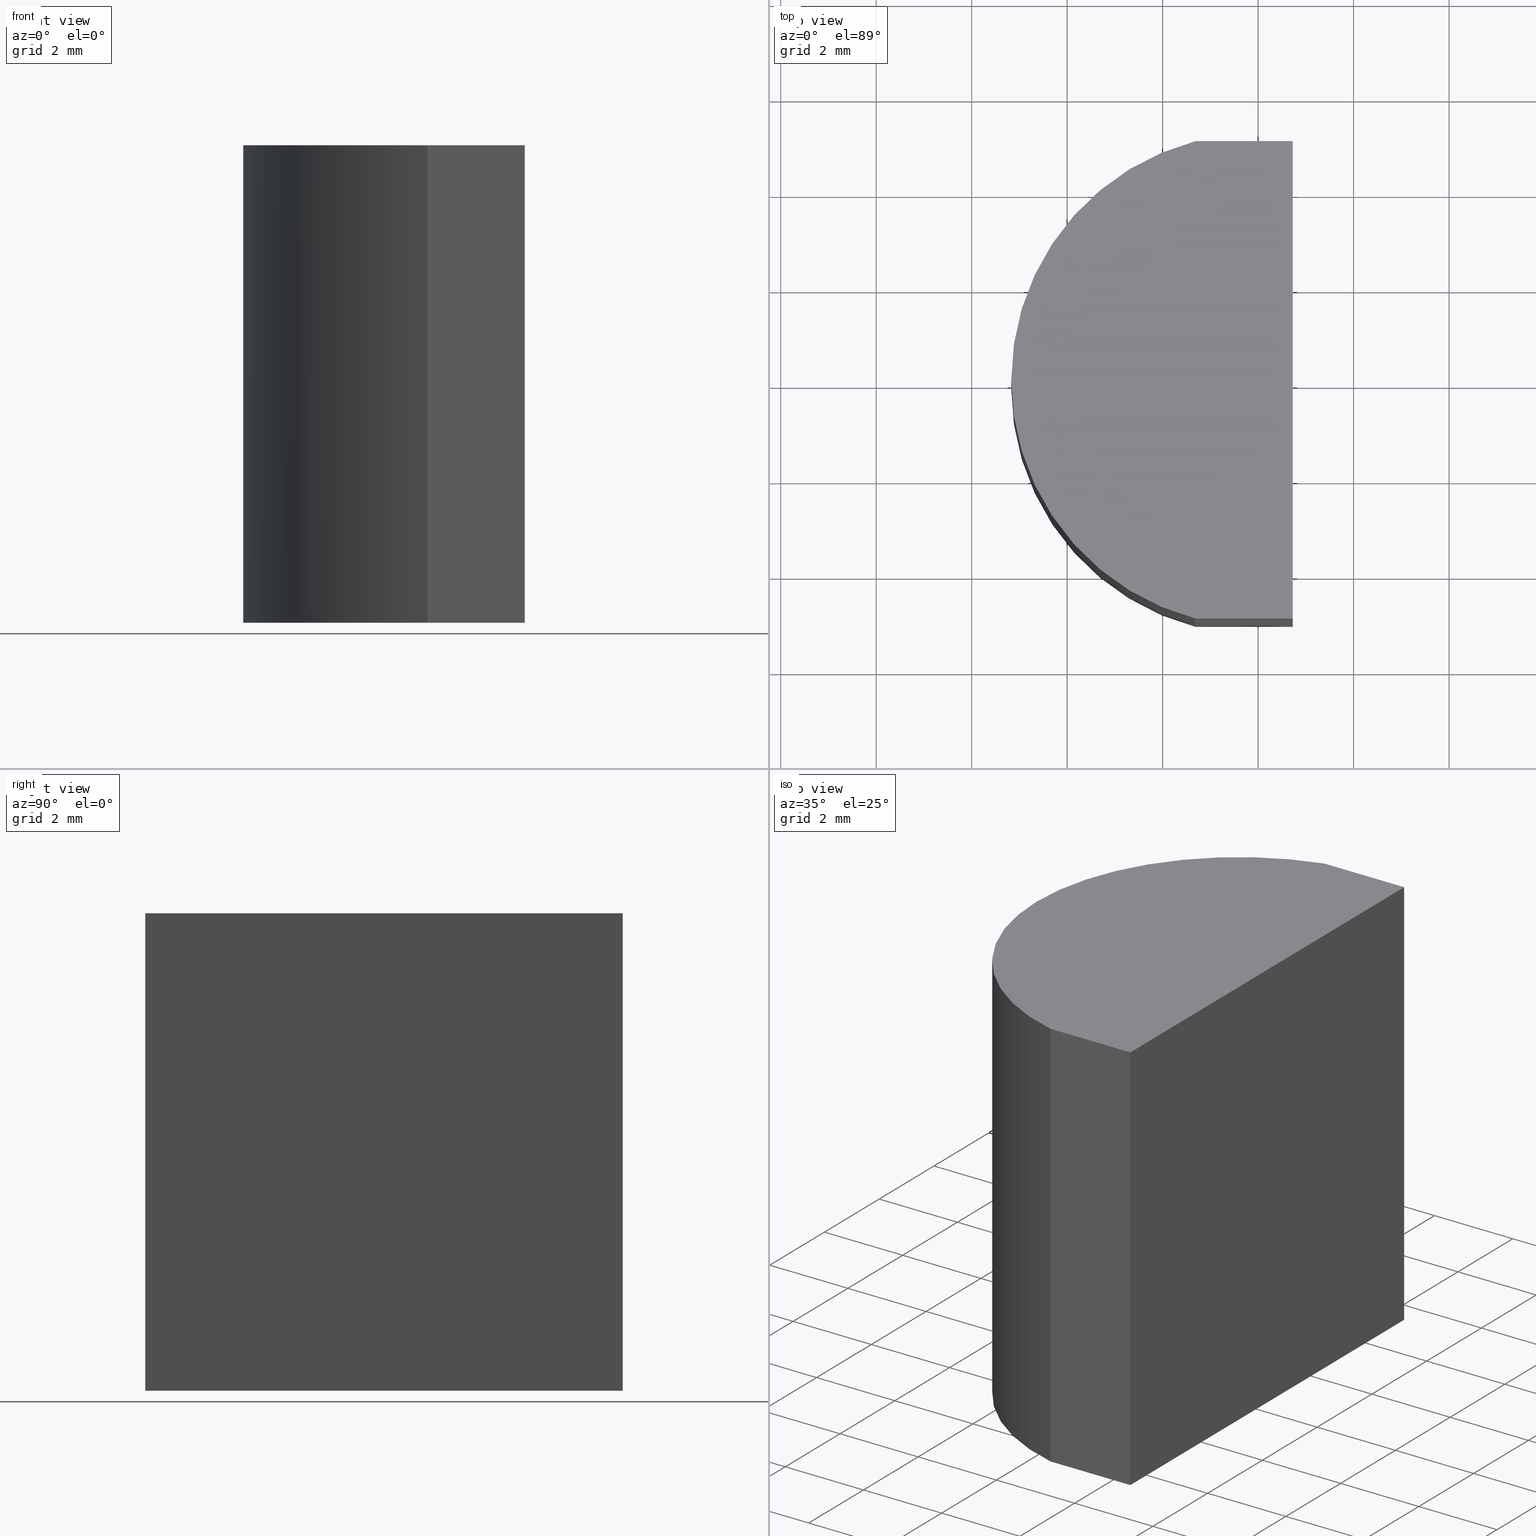
[diagram: canonical four-view strip — front | top / right | iso, engineering-drawing reading convention]
A machine part, canonical four-view strip (front | top / right | iso — engineering-drawing reading convention). The complete STEP part file that produces these views, byte-faithful:
ISO-10303-21;
HEADER;
FILE_DESCRIPTION (( 'STEP AP203' ),
    '1' );
FILE_NAME ('1555517.STEP',
    '2024-05-13T02:27:43',
    ( '' ),
    ( '' ),
    'SwSTEP 2.0',
    'SolidWorks 2020',
    '' );
FILE_SCHEMA (( 'CONFIG_CONTROL_DESIGN' ));
ENDSEC;

DATA;
#1 = SHAPE_DEFINITION_REPRESENTATION ( #11, #206 ) ;
#2 = AXIS2_PLACEMENT_3D ( 'NONE', #225, #198, #118 ) ;
#3 = CARTESIAN_POINT ( 'NONE',  ( 0.7251235799513326974, 5.000000000000000000, 0.000000000000000000 ) ) ;
#4 = VERTEX_POINT ( 'NONE', #29 ) ;
#5 = FACE_OUTER_BOUND ( 'NONE', #64, .T. ) ;
#6 = CYLINDRICAL_SURFACE ( 'NONE', #142, 5.169999999999999929 ) ;
#7 = APPROVAL_PERSON_ORGANIZATION ( #45, #121, #125 ) ;
#8 = DATE_AND_TIME ( #80, #58 ) ;
#9 = VERTEX_POINT ( 'NONE', #90 ) ;
#10 = CARTESIAN_POINT ( 'NONE',  ( -1.314876420048667560, -5.000000000000000000, 0.000000000000000000 ) ) ;
#11 = PRODUCT_DEFINITION_SHAPE ( 'NONE', 'NONE',  #252 ) ;
#12 = FACE_OUTER_BOUND ( 'NONE', #167, .T. ) ;
#13 = ADVANCED_FACE ( 'NONE', ( #12 ), #87, .T. ) ;
#14 = FACE_OUTER_BOUND ( 'NONE', #217, .T. ) ;
#15 = CARTESIAN_POINT ( 'NONE',  ( -1.314876420048667560, 5.000000000000000000, 0.000000000000000000 ) ) ;
#16 = DIRECTION ( 'NONE',  ( -0.000000000000000000, 1.000000000000000000, -0.000000000000000000 ) ) ;
#17 =( LENGTH_UNIT ( ) NAMED_UNIT ( * ) SI_UNIT ( .MILLI., .METRE. ) );
#18 = EDGE_CURVE ( 'NONE', #70, #4, #221, .T. ) ;
#19 = APPROVAL ( #86, 'δָ��' ) ;
#20 = COORDINATED_UNIVERSAL_TIME_OFFSET ( 8, 0, .AHEAD. ) ;
#21 = VERTEX_POINT ( 'NONE', #245 ) ;
#22 = ORIENTED_EDGE ( 'NONE', *, *, #200, .T. ) ;
#23 = PERSON_AND_ORGANIZATION_ROLE ( 'classification_officer' ) ;
#24 = CARTESIAN_POINT ( 'NONE',  ( 0.7251235799513326974, 5.000000000000000000, 10.00000000000000000 ) ) ;
#25 = ADVANCED_FACE ( 'NONE', ( #243 ), #6, .T. ) ;
#26 = PERSON_AND_ORGANIZATION_ROLE ( 'creator' ) ;
#27 = ORIENTED_EDGE ( 'NONE', *, *, #39, .F. ) ;
#28 = EDGE_LOOP ( 'NONE', ( #213, #106, #46, #219, #193 ) ) ;
#29 = CARTESIAN_POINT ( 'NONE',  ( 0.7251235799513326974, 5.000000000000000000, 0.000000000000000000 ) ) ;
#30 = CC_DESIGN_APPROVAL ( #121, ( #110 ) ) ;
#31 = EDGE_LOOP ( 'NONE', ( #85, #148, #47, #102 ) ) ;
#32 = CC_DESIGN_PERSON_AND_ORGANIZATION_ASSIGNMENT ( #122, #26, ( #207 ) ) ;
#33 = DIRECTION ( 'NONE',  ( -0.000000000000000000, 1.000000000000000000, -0.000000000000000000 ) ) ;
#34 = AXIS2_PLACEMENT_3D ( 'NONE', #172, #152, #130 ) ;
#35 = DIRECTION ( 'NONE',  ( 1.000000000000000000, 0.000000000000000000, 0.000000000000000000 ) ) ;
#36 = APPLICATION_PROTOCOL_DEFINITION ( 'international standard', 'config_control_design', 1994, #89 ) ;
#37 = DIRECTION ( 'NONE',  ( 1.000000000000000000, 0.000000000000000000, 0.000000000000000000 ) ) ;
#38 = DIRECTION ( 'NONE',  ( 1.000000000000000000, 0.000000000000000000, -0.000000000000000000 ) ) ;
#39 = EDGE_CURVE ( 'NONE', #83, #259, #175, .T. ) ;
#40 = DATE_AND_TIME ( #234, #165 ) ;
#41 = UNCERTAINTY_MEASURE_WITH_UNIT (LENGTH_MEASURE( 1.000000000000000082E-05 ), #17, 'distance_accuracy_value', 'NONE');
#42 = DATE_AND_TIME ( #69, #232 ) ;
#43 = DIRECTION ( 'NONE',  ( -1.000000000000000000, -0.000000000000000000, -0.000000000000000000 ) ) ;
#44 = EDGE_CURVE ( 'NONE', #70, #83, #263, .T. ) ;
#45 = PERSON_AND_ORGANIZATION ( #178, #104 ) ;
#46 = ORIENTED_EDGE ( 'NONE', *, *, #78, .F. ) ;
#47 = ORIENTED_EDGE ( 'NONE', *, *, #39, .T. ) ;
#48 = PERSON_AND_ORGANIZATION ( #178, #104 ) ;
#49 = CARTESIAN_POINT ( 'NONE',  ( -1.314876420048667560, 5.000000000000000000, 10.00000000000000000 ) ) ;
#50 = PRODUCT ( '1555517', '1555517', '', ( #116 ) ) ;
#51 = ORIENTED_EDGE ( 'NONE', *, *, #247, .T. ) ;
#52 = DIRECTION ( 'NONE',  ( 0.000000000000000000, 0.000000000000000000, 1.000000000000000000 ) ) ;
#53 = DIRECTION ( 'NONE',  ( 1.000000000000000000, 0.000000000000000000, 0.000000000000000000 ) ) ;
#54 = CARTESIAN_POINT ( 'NONE',  ( -5.169999999999999929, 0.000000000000000000, 10.00000000000000000 ) ) ;
#55 = CARTESIAN_POINT ( 'NONE',  ( -1.314876420048667560, 5.000000000000000000, 10.00000000000000000 ) ) ;
#56 = CC_DESIGN_DATE_AND_TIME_ASSIGNMENT ( #40, #185, ( #110 ) ) ;
#57 = VECTOR ( 'NONE', #33, 1000.000000000000000 ) ;
#58 = LOCAL_TIME ( 10, 27, 43.00000000000000000, #216 ) ;
#59 = PERSON_AND_ORGANIZATION ( #178, #104 ) ;
#60 = VERTEX_POINT ( 'NONE', #195 ) ;
#61 = FACE_OUTER_BOUND ( 'NONE', #208, .T. ) ;
#62 = APPROVAL_DATE_TIME ( #242, #194 ) ;
#63 = VECTOR ( 'NONE', #241, 1000.000000000000000 ) ;
#64 = EDGE_LOOP ( 'NONE', ( #255, #164, #258, #196 ) ) ;
#65 = VERTEX_POINT ( 'NONE', #10 ) ;
#66 = CALENDAR_DATE ( 2024, 13, 5 ) ;
#67 = DIRECTION ( 'NONE',  ( -0.000000000000000000, -0.000000000000000000, -1.000000000000000000 ) ) ;
#68 = CC_DESIGN_DATE_AND_TIME_ASSIGNMENT ( #84, #166, ( #252 ) ) ;
#69 = CALENDAR_DATE ( 2024, 13, 5 ) ;
#70 = VERTEX_POINT ( 'NONE', #24 ) ;
#71 = PLANE ( 'NONE',  #272 ) ;
#72 = DIRECTION ( 'NONE',  ( 0.000000000000000000, 1.000000000000000000, 0.000000000000000000 ) ) ;
#73 = AXIS2_PLACEMENT_3D ( 'NONE', #95, #182, #180 ) ;
#74 = ADVANCED_FACE ( 'NONE', ( #5 ), #71, .F. ) ;
#75 = CARTESIAN_POINT ( 'NONE',  ( 0.7251235799513326974, 5.000000000000000000, 10.00000000000000000 ) ) ;
#76 = LINE ( 'NONE', #249, #119 ) ;
#77 = LINE ( 'NONE', #269, #231 ) ;
#78 = EDGE_CURVE ( 'NONE', #9, #4, #223, .T. ) ;
#79 =( NAMED_UNIT ( * ) PLANE_ANGLE_UNIT ( ) SI_UNIT ( $, .RADIAN. ) );
#80 = CALENDAR_DATE ( 2024, 13, 5 ) ;
#81 = ORIENTED_EDGE ( 'NONE', *, *, #18, .T. ) ;
#82 = AXIS2_PLACEMENT_3D ( 'NONE', #160, #97, #38 ) ;
#83 = VERTEX_POINT ( 'NONE', #113 ) ;
#84 = DATE_AND_TIME ( #151, #159 ) ;
#85 = ORIENTED_EDGE ( 'NONE', *, *, #162, .F. ) ;
#86 = APPROVAL_STATUS ( 'not_yet_approved' ) ;
#87 = CYLINDRICAL_SURFACE ( 'NONE', #128, 5.169999999999999929 ) ;
#88 = CC_DESIGN_APPROVAL ( #19, ( #207 ) ) ;
#89 = APPLICATION_CONTEXT ( 'configuration controlled 3d designs of mechanical parts and assemblies' ) ;
#90 = CARTESIAN_POINT ( 'NONE',  ( 0.7251235799513326974, -5.000000000000000000, 0.000000000000000000 ) ) ;
#91 = EDGE_LOOP ( 'NONE', ( #239, #235, #262, #131 ) ) ;
#92 = CIRCLE ( 'NONE', #34, 5.169999999999999929 ) ;
#93 =( NAMED_UNIT ( * ) SI_UNIT ( $, .STERADIAN. ) SOLID_ANGLE_UNIT ( ) );
#94 = DIRECTION ( 'NONE',  ( 0.000000000000000000, 0.000000000000000000, 1.000000000000000000 ) ) ;
#95 = CARTESIAN_POINT ( 'NONE',  ( 0.000000000000000000, 0.000000000000000000, 10.00000000000000000 ) ) ;
#96 = CC_DESIGN_SECURITY_CLASSIFICATION ( #110, ( #207 ) ) ;
#97 = DIRECTION ( 'NONE',  ( 0.000000000000000000, 0.000000000000000000, 1.000000000000000000 ) ) ;
#98 = AXIS2_PLACEMENT_3D ( 'NONE', #230, #94, #37 ) ;
#99 = ADVANCED_FACE ( 'NONE', ( #61 ), #197, .T. ) ;
#100 = AXIS2_PLACEMENT_3D ( 'NONE', #115, #250, #179 ) ;
#101 = APPROVAL_DATE_TIME ( #8, #121 ) ;
#102 = ORIENTED_EDGE ( 'NONE', *, *, #137, .T. ) ;
#103 = DIRECTION ( 'NONE',  ( -1.000000000000000000, 0.000000000000000000, 0.000000000000000000 ) ) ;
#104 = ORGANIZATION ( 'δָ��', 'δָ��', '' ) ;
#105 = DIRECTION ( 'NONE',  ( -1.000000000000000000, -0.000000000000000000, -0.000000000000000000 ) ) ;
#106 = ORIENTED_EDGE ( 'NONE', *, *, #123, .F. ) ;
#107 = APPROVAL_STATUS ( 'not_yet_approved' ) ;
#108 = ORIENTED_EDGE ( 'NONE', *, *, #200, .F. ) ;
#109 = CARTESIAN_POINT ( 'NONE',  ( -1.314876420048667560, 5.000000000000000000, 10.00000000000000000 ) ) ;
#110 = SECURITY_CLASSIFICATION ( '', '', #218 ) ;
#111 = ORIENTED_EDGE ( 'NONE', *, *, #44, .F. ) ;
#112 = APPROVAL_PERSON_ORGANIZATION ( #184, #194, #237 ) ;
#113 = CARTESIAN_POINT ( 'NONE',  ( -1.314876420048667560, 5.000000000000000000, 10.00000000000000000 ) ) ;
#114 = LINE ( 'NONE', #75, #246 ) ;
#115 = CARTESIAN_POINT ( 'NONE',  ( 0.7251235799513326974, 5.000000000000000000, 10.00000000000000000 ) ) ;
#116 = MECHANICAL_CONTEXT ( 'NONE', #89, 'mechanical' ) ;
#117 = CC_DESIGN_PERSON_AND_ORGANIZATION_ASSIGNMENT ( #48, #214, ( #252 ) ) ;
#118 = DIRECTION ( 'NONE',  ( 1.000000000000000000, 0.000000000000000000, 0.000000000000000000 ) ) ;
#119 = VECTOR ( 'NONE', #203, 1000.000000000000000 ) ;
#120 = CC_DESIGN_PERSON_AND_ORGANIZATION_ASSIGNMENT ( #192, #209, ( #50 ) ) ;
#121 = APPROVAL ( #107, 'δָ��' ) ;
#122 = PERSON_AND_ORGANIZATION ( #178, #104 ) ;
#123 = EDGE_CURVE ( 'NONE', #4, #259, #155, .T. ) ;
#124 = DESIGN_CONTEXT ( 'detailed design', #212, 'design' ) ;
#125 = APPROVAL_ROLE ( '' ) ;
#126 = ORIENTED_EDGE ( 'NONE', *, *, #44, .T. ) ;
#127 = CARTESIAN_POINT ( 'NONE',  ( -1.314876420048667560, 5.000000000000000000, 0.000000000000000000 ) ) ;
#128 = AXIS2_PLACEMENT_3D ( 'NONE', #132, #67, #103 ) ;
#129 = APPROVAL_STATUS ( 'not_yet_approved' ) ;
#130 = DIRECTION ( 'NONE',  ( 1.000000000000000000, 0.000000000000000000, 0.000000000000000000 ) ) ;
#131 = ORIENTED_EDGE ( 'NONE', *, *, #220, .T. ) ;
#132 = CARTESIAN_POINT ( 'NONE',  ( 0.000000000000000000, 0.000000000000000000, 10.00000000000000000 ) ) ;
#133 = PRODUCT_RELATED_PRODUCT_CATEGORY ( 'detail', '', ( #50 ) ) ;
#134 = DIRECTION ( 'NONE',  ( -0.000000000000000000, -0.000000000000000000, -1.000000000000000000 ) ) ;
#135 = DIRECTION ( 'NONE',  ( 0.000000000000000000, -0.000000000000000000, 1.000000000000000000 ) ) ;
#136 =( GEOMETRIC_REPRESENTATION_CONTEXT ( 3 ) GLOBAL_UNCERTAINTY_ASSIGNED_CONTEXT ( ( #41 ) ) GLOBAL_UNIT_ASSIGNED_CONTEXT ( ( #17, #79, #93 ) ) REPRESENTATION_CONTEXT ( 'NONE', 'WORKASPACE' ) );
#137 = EDGE_CURVE ( 'NONE', #259, #60, #92, .T. ) ;
#138 = DIRECTION ( 'NONE',  ( -0.000000000000000000, -0.000000000000000000, -1.000000000000000000 ) ) ;
#139 = CARTESIAN_POINT ( 'NONE',  ( -1.314876420048667560, -5.000000000000000000, 0.000000000000000000 ) ) ;
#140 = LINE ( 'NONE', #139, #264 ) ;
#141 = PLANE ( 'NONE',  #82 ) ;
#142 = AXIS2_PLACEMENT_3D ( 'NONE', #260, #174, #154 ) ;
#143 = EDGE_CURVE ( 'NONE', #21, #170, #215, .T. ) ;
#144 = LOCAL_TIME ( 10, 27, 43.00000000000000000, #254 ) ;
#145 = PERSON_AND_ORGANIZATION ( #178, #104 ) ;
#146 = ORIENTED_EDGE ( 'NONE', *, *, #162, .T. ) ;
#147 = APPLICATION_PROTOCOL_DEFINITION ( 'international standard', 'config_control_design', 1994, #212 ) ;
#148 = ORIENTED_EDGE ( 'NONE', *, *, #273, .F. ) ;
#149 = CARTESIAN_POINT ( 'NONE',  ( 0.000000000000000000, 0.000000000000000000, 10.00000000000000000 ) ) ;
#150 = AXIS2_PLACEMENT_3D ( 'NONE', #149, #176, #265 ) ;
#151 = CALENDAR_DATE ( 2024, 13, 5 ) ;
#152 = DIRECTION ( 'NONE',  ( 0.000000000000000000, 0.000000000000000000, 1.000000000000000000 ) ) ;
#153 = ORIENTED_EDGE ( 'NONE', *, *, #123, .T. ) ;
#154 = DIRECTION ( 'NONE',  ( -1.000000000000000000, 0.000000000000000000, 0.000000000000000000 ) ) ;
#155 = LINE ( 'NONE', #127, #211 ) ;
#156 = LINE ( 'NONE', #271, #188 ) ;
#157 = MANIFOLD_SOLID_BREP ( '͹̨-����1', #251 ) ;
#158 = DIRECTION ( 'NONE',  ( -0.000000000000000000, -0.000000000000000000, -1.000000000000000000 ) ) ;
#159 = LOCAL_TIME ( 10, 27, 43.00000000000000000, #274 ) ;
#160 = CARTESIAN_POINT ( 'NONE',  ( 0.000000000000000000, 0.000000000000000000, 0.000000000000000000 ) ) ;
#161 = EDGE_CURVE ( 'NONE', #60, #65, #228, .T. ) ;
#162 = EDGE_CURVE ( 'NONE', #186, #60, #77, .T. ) ;
#163 = PERSON_AND_ORGANIZATION_ROLE ( 'design_supplier' ) ;
#164 = ORIENTED_EDGE ( 'NONE', *, *, #220, .F. ) ;
#165 = LOCAL_TIME ( 10, 27, 43.00000000000000000, #20 ) ;
#166 = DATE_TIME_ROLE ( 'creation_date' ) ;
#167 = EDGE_LOOP ( 'NONE', ( #108, #146, #261, #257 ) ) ;
#168 = DIRECTION ( 'NONE',  ( -0.000000000000000000, -0.000000000000000000, -1.000000000000000000 ) ) ;
#169 = COORDINATED_UNIVERSAL_TIME_OFFSET ( 8, 0, .AHEAD. ) ;
#170 = VERTEX_POINT ( 'NONE', #248 ) ;
#171 = ADVANCED_FACE ( 'NONE', ( #229 ), #267, .F. ) ;
#172 = CARTESIAN_POINT ( 'NONE',  ( 0.000000000000000000, 0.000000000000000000, 0.000000000000000000 ) ) ;
#173 = PERSON_AND_ORGANIZATION ( #178, #104 ) ;
#174 = DIRECTION ( 'NONE',  ( -0.000000000000000000, -0.000000000000000000, -1.000000000000000000 ) ) ;
#175 = LINE ( 'NONE', #49, #177 ) ;
#176 = DIRECTION ( 'NONE',  ( 0.000000000000000000, 0.000000000000000000, 1.000000000000000000 ) ) ;
#177 = VECTOR ( 'NONE', #168, 1000.000000000000000 ) ;
#178 = PERSON ( 'δָ��', 'δָ��', 'δָ��', ('δָ��'), ('δָ��'), ('δָ��') ) ;
#179 = DIRECTION ( 'NONE',  ( 0.000000000000000000, 0.000000000000000000, 1.000000000000000000 ) ) ;
#180 = DIRECTION ( 'NONE',  ( 1.000000000000000000, 0.000000000000000000, 0.000000000000000000 ) ) ;
#181 = APPROVAL_PERSON_ORGANIZATION ( #59, #19, #190 ) ;
#182 = DIRECTION ( 'NONE',  ( 0.000000000000000000, 0.000000000000000000, 1.000000000000000000 ) ) ;
#183 = VECTOR ( 'NONE', #105, 1000.000000000000000 ) ;
#184 = PERSON_AND_ORGANIZATION ( #178, #104 ) ;
#185 = DATE_TIME_ROLE ( 'classification_date' ) ;
#186 = VERTEX_POINT ( 'NONE', #54 ) ;
#187 = CARTESIAN_POINT ( 'NONE',  ( 0.7251235799513326974, 5.000000000000000000, 10.00000000000000000 ) ) ;
#188 = VECTOR ( 'NONE', #138, 1000.000000000000000 ) ;
#189 = EDGE_CURVE ( 'NONE', #65, #9, #140, .T. ) ;
#190 = APPROVAL_ROLE ( '' ) ;
#191 = CARTESIAN_POINT ( 'NONE',  ( -1.314876420048667560, -5.000000000000000000, 10.00000000000000000 ) ) ;
#192 = PERSON_AND_ORGANIZATION ( #178, #104 ) ;
#193 = ORIENTED_EDGE ( 'NONE', *, *, #161, .F. ) ;
#194 = APPROVAL ( #129, 'δָ��' ) ;
#195 = CARTESIAN_POINT ( 'NONE',  ( -5.169999999999999929, 0.000000000000000000, 0.000000000000000000 ) ) ;
#196 = ORIENTED_EDGE ( 'NONE', *, *, #266, .T. ) ;
#197 = PLANE ( 'NONE',  #150 ) ;
#198 = DIRECTION ( 'NONE',  ( 0.000000000000000000, 0.000000000000000000, 1.000000000000000000 ) ) ;
#199 = VECTOR ( 'NONE', #134, 1000.000000000000000 ) ;
#200 = EDGE_CURVE ( 'NONE', #186, #21, #205, .T. ) ;
#201 = PLANE ( 'NONE',  #224 ) ;
#202 = DIRECTION ( 'NONE',  ( 0.000000000000000000, -1.000000000000000000, 0.000000000000000000 ) ) ;
#203 = DIRECTION ( 'NONE',  ( -0.000000000000000000, -0.000000000000000000, -1.000000000000000000 ) ) ;
#204 = CC_DESIGN_PERSON_AND_ORGANIZATION_ASSIGNMENT ( #145, #23, ( #110 ) ) ;
#205 = CIRCLE ( 'NONE', #2, 5.169999999999999929 ) ;
#206 = ADVANCED_BREP_SHAPE_REPRESENTATION ( '1555517', ( #157, #233 ), #136 ) ;
#207 = PRODUCT_DEFINITION_FORMATION_WITH_SPECIFIED_SOURCE ( '�κ�', '', #50, .NOT_KNOWN. ) ;
#208 = EDGE_LOOP ( 'NONE', ( #210, #22, #238, #51, #126 ) ) ;
#209 = PERSON_AND_ORGANIZATION_ROLE ( 'design_owner' ) ;
#210 = ORIENTED_EDGE ( 'NONE', *, *, #273, .T. ) ;
#211 = VECTOR ( 'NONE', #43, 1000.000000000000000 ) ;
#212 = APPLICATION_CONTEXT ( 'configuration controlled 3d designs of mechanical parts and assemblies' ) ;
#213 = ORIENTED_EDGE ( 'NONE', *, *, #137, .F. ) ;
#214 = PERSON_AND_ORGANIZATION_ROLE ( 'creator' ) ;
#215 = LINE ( 'NONE', #191, #63 ) ;
#216 = COORDINATED_UNIVERSAL_TIME_OFFSET ( 8, 0, .AHEAD. ) ;
#217 = EDGE_LOOP ( 'NONE', ( #153, #27, #111, #81 ) ) ;
#218 = SECURITY_CLASSIFICATION_LEVEL ( 'unclassified' ) ;
#219 = ORIENTED_EDGE ( 'NONE', *, *, #189, .F. ) ;
#220 = EDGE_CURVE ( 'NONE', #170, #9, #76, .T. ) ;
#221 = LINE ( 'NONE', #187, #199 ) ;
#222 = CC_DESIGN_APPROVAL ( #194, ( #252 ) ) ;
#223 = LINE ( 'NONE', #3, #57 ) ;
#224 = AXIS2_PLACEMENT_3D ( 'NONE', #55, #202, #270 ) ;
#225 = CARTESIAN_POINT ( 'NONE',  ( 0.000000000000000000, 0.000000000000000000, 10.00000000000000000 ) ) ;
#226 = CARTESIAN_POINT ( 'NONE',  ( 0.000000000000000000, 0.000000000000000000, 0.000000000000000000 ) ) ;
#227 = ADVANCED_FACE ( 'NONE', ( #268 ), #141, .F. ) ;
#228 = CIRCLE ( 'NONE', #98, 5.169999999999999929 ) ;
#229 = FACE_OUTER_BOUND ( 'NONE', #91, .T. ) ;
#230 = CARTESIAN_POINT ( 'NONE',  ( 0.000000000000000000, 0.000000000000000000, 0.000000000000000000 ) ) ;
#231 = VECTOR ( 'NONE', #158, 1000.000000000000000 ) ;
#232 = LOCAL_TIME ( 10, 27, 43.00000000000000000, #169 ) ;
#233 = AXIS2_PLACEMENT_3D ( 'NONE', #226, #52, #53 ) ;
#234 = CALENDAR_DATE ( 2024, 13, 5 ) ;
#235 = ORIENTED_EDGE ( 'NONE', *, *, #18, .F. ) ;
#236 = ADVANCED_FACE ( 'NONE', ( #14 ), #201, .F. ) ;
#237 = APPROVAL_ROLE ( '' ) ;
#238 = ORIENTED_EDGE ( 'NONE', *, *, #143, .T. ) ;
#239 = ORIENTED_EDGE ( 'NONE', *, *, #78, .T. ) ;
#240 = APPROVAL_DATE_TIME ( #42, #19 ) ;
#241 = DIRECTION ( 'NONE',  ( 1.000000000000000000, 0.000000000000000000, 0.000000000000000000 ) ) ;
#242 = DATE_AND_TIME ( #66, #144 ) ;
#243 = FACE_OUTER_BOUND ( 'NONE', #31, .T. ) ;
#244 = CARTESIAN_POINT ( 'NONE',  ( -1.314876420048667560, -5.000000000000000000, 10.00000000000000000 ) ) ;
#245 = CARTESIAN_POINT ( 'NONE',  ( -1.314876420048667560, -5.000000000000000000, 10.00000000000000000 ) ) ;
#246 = VECTOR ( 'NONE', #16, 1000.000000000000000 ) ;
#247 = EDGE_CURVE ( 'NONE', #170, #70, #114, .T. ) ;
#248 = CARTESIAN_POINT ( 'NONE',  ( 0.7251235799513326974, -5.000000000000000000, 10.00000000000000000 ) ) ;
#249 = CARTESIAN_POINT ( 'NONE',  ( 0.7251235799513326974, -5.000000000000000000, 10.00000000000000000 ) ) ;
#250 = DIRECTION ( 'NONE',  ( -1.000000000000000000, 0.000000000000000000, 0.000000000000000000 ) ) ;
#251 = CLOSED_SHELL ( 'NONE', ( #13, #25, #74, #171, #236, #99, #227 ) ) ;
#252 = PRODUCT_DEFINITION ( 'δ֪', '', #207, #124 ) ;
#253 = CC_DESIGN_PERSON_AND_ORGANIZATION_ASSIGNMENT ( #173, #163, ( #207 ) ) ;
#254 = COORDINATED_UNIVERSAL_TIME_OFFSET ( 8, 0, .AHEAD. ) ;
#255 = ORIENTED_EDGE ( 'NONE', *, *, #189, .T. ) ;
#256 = CIRCLE ( 'NONE', #73, 5.169999999999999929 ) ;
#257 = ORIENTED_EDGE ( 'NONE', *, *, #266, .F. ) ;
#258 = ORIENTED_EDGE ( 'NONE', *, *, #143, .F. ) ;
#259 = VERTEX_POINT ( 'NONE', #15 ) ;
#260 = CARTESIAN_POINT ( 'NONE',  ( 0.000000000000000000, 0.000000000000000000, 10.00000000000000000 ) ) ;
#261 = ORIENTED_EDGE ( 'NONE', *, *, #161, .T. ) ;
#262 = ORIENTED_EDGE ( 'NONE', *, *, #247, .F. ) ;
#263 = LINE ( 'NONE', #109, #183 ) ;
#264 = VECTOR ( 'NONE', #35, 1000.000000000000000 ) ;
#265 = DIRECTION ( 'NONE',  ( 1.000000000000000000, 0.000000000000000000, -0.000000000000000000 ) ) ;
#266 = EDGE_CURVE ( 'NONE', #21, #65, #156, .T. ) ;
#267 = PLANE ( 'NONE',  #100 ) ;
#268 = FACE_OUTER_BOUND ( 'NONE', #28, .T. ) ;
#269 = CARTESIAN_POINT ( 'NONE',  ( -5.169999999999999929, 0.000000000000000000, 10.00000000000000000 ) ) ;
#270 = DIRECTION ( 'NONE',  ( 0.000000000000000000, -0.000000000000000000, -1.000000000000000000 ) ) ;
#271 = CARTESIAN_POINT ( 'NONE',  ( -1.314876420048667560, -5.000000000000000000, 10.00000000000000000 ) ) ;
#272 = AXIS2_PLACEMENT_3D ( 'NONE', #244, #72, #135 ) ;
#273 = EDGE_CURVE ( 'NONE', #83, #186, #256, .T. ) ;
#274 = COORDINATED_UNIVERSAL_TIME_OFFSET ( 8, 0, .AHEAD. ) ;
ENDSEC;
END-ISO-10303-21;
